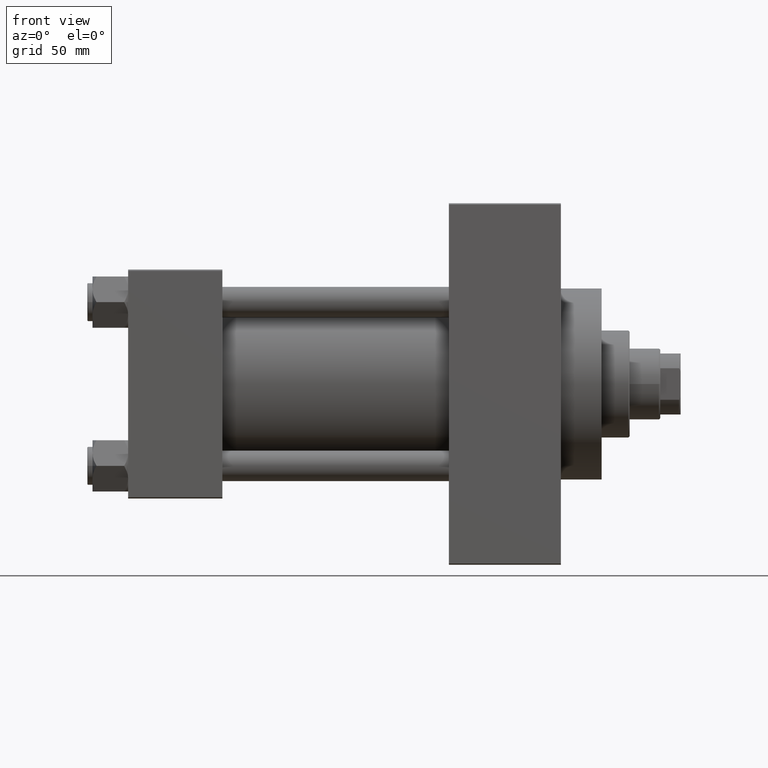
[diagram: clean part render]
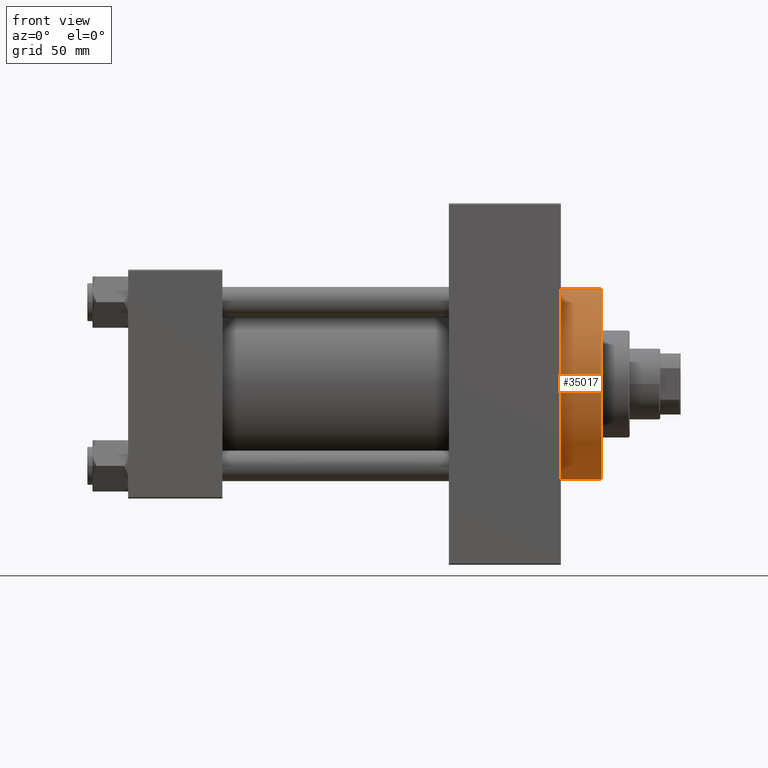
[diagram: same view with one face highlighted and labeled with its STEP entity id]
A machine part, front view. The second image highlights one B-rep face of the part: STEP entity #35017.
In plain terms, the highlighted cylindrical surface (partial cylindrical patch) has radius 37.5 mm, axis along (-1, -0, -0).
Its self-contained STEP definition (entity closure, byte-faithful):
#3308 = CIRCLE ( 'NONE', #21732, 37.50000000000000711 ) ;
#3401 = CARTESIAN_POINT ( 'NONE',  ( 169.9999999999999716, 4.592425496802575156E-15, -37.50000000000000711 ) ) ;
#3572 = VERTEX_POINT ( 'NONE', #42275 ) ;
#3872 = EDGE_CURVE ( 'NONE', #3572, #34459, #27258, .T. ) ;
#4407 = CARTESIAN_POINT ( 'NONE',  ( 186.0000000000000000, 4.592425496802575156E-15, -37.50000000000000711 ) ) ;
#5432 = DIRECTION ( 'NONE',  ( -1.000000000000000000, -0.000000000000000000, -0.000000000000000000 ) ) ;
#5499 = EDGE_CURVE ( 'NONE', #34459, #18840, #3308, .T. ) ;
#6011 = EDGE_CURVE ( 'NONE', #41766, #18840, #24166, .T. ) ;
#6627 = DIRECTION ( 'NONE',  ( 0.000000000000000000, 0.000000000000000000, 1.000000000000000000 ) ) ;
#7438 = CARTESIAN_POINT ( 'NONE',  ( 169.9999999999999716, 0.000000000000000000, 37.50000000000000711 ) ) ;
#8721 = CIRCLE ( 'NONE', #9488, 37.50000000000000711 ) ;
#9488 = AXIS2_PLACEMENT_3D ( 'NONE', #34526, #42204, #39101 ) ;
#9921 = EDGE_CURVE ( 'NONE', #3572, #41766, #8721, .T. ) ;
#10465 = DIRECTION ( 'NONE',  ( -1.000000000000000000, -0.000000000000000000, -0.000000000000000000 ) ) ;
#11189 = ORIENTED_EDGE ( 'NONE', *, *, #6011, .F. ) ;
#13900 = ORIENTED_EDGE ( 'NONE', *, *, #5499, .T. ) ;
#13956 = DIRECTION ( 'NONE',  ( 0.000000000000000000, 0.000000000000000000, -1.000000000000000000 ) ) ;
#14023 = VECTOR ( 'NONE', #5432, 1000.000000000000000 ) ;
#16660 = ORIENTED_EDGE ( 'NONE', *, *, #9921, .F. ) ;
#16963 = FACE_OUTER_BOUND ( 'NONE', #46218, .T. ) ;
#17203 = CARTESIAN_POINT ( 'NONE',  ( 186.0000000000000000, 0.000000000000000000, 0.000000000000000000 ) ) ;
#17322 = DIRECTION ( 'NONE',  ( 1.000000000000000000, 0.000000000000000000, 0.000000000000000000 ) ) ;
#18840 = VERTEX_POINT ( 'NONE', #3401 ) ;
#20446 = CARTESIAN_POINT ( 'NONE',  ( 169.9999999999999716, 0.000000000000000000, 0.000000000000000000 ) ) ;
#21016 = VECTOR ( 'NONE', #41910, 1000.000000000000000 ) ;
#21732 = AXIS2_PLACEMENT_3D ( 'NONE', #20446, #17322, #13956 ) ;
#24166 = LINE ( 'NONE', #46677, #21016 ) ;
#27258 = LINE ( 'NONE', #38305, #14023 ) ;
#32069 = ORIENTED_EDGE ( 'NONE', *, *, #3872, .T. ) ;
#34459 = VERTEX_POINT ( 'NONE', #7438 ) ;
#34526 = CARTESIAN_POINT ( 'NONE',  ( 186.0000000000000000, 0.000000000000000000, 0.000000000000000000 ) ) ;
#35017 = ADVANCED_FACE ( 'NONE', ( #16963 ), #39274, .T. ) ;
#38305 = CARTESIAN_POINT ( 'NONE',  ( 186.0000000000000000, 0.000000000000000000, 37.50000000000000711 ) ) ;
#39101 = DIRECTION ( 'NONE',  ( 0.000000000000000000, 0.000000000000000000, -1.000000000000000000 ) ) ;
#39274 = CYLINDRICAL_SURFACE ( 'NONE', #41898, 37.50000000000000711 ) ;
#41766 = VERTEX_POINT ( 'NONE', #4407 ) ;
#41898 = AXIS2_PLACEMENT_3D ( 'NONE', #17203, #10465, #6627 ) ;
#41910 = DIRECTION ( 'NONE',  ( -1.000000000000000000, -0.000000000000000000, -0.000000000000000000 ) ) ;
#42204 = DIRECTION ( 'NONE',  ( 1.000000000000000000, 0.000000000000000000, 0.000000000000000000 ) ) ;
#42275 = CARTESIAN_POINT ( 'NONE',  ( 186.0000000000000000, 0.000000000000000000, 37.50000000000000711 ) ) ;
#46218 = EDGE_LOOP ( 'NONE', ( #11189, #16660, #32069, #13900 ) ) ;
#46677 = CARTESIAN_POINT ( 'NONE',  ( 186.0000000000000000, 4.592425496802575156E-15, -37.50000000000000711 ) ) ;